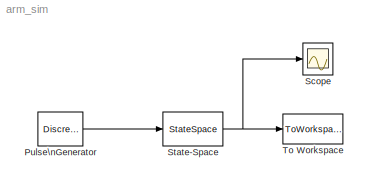
MODEL arm_sim
KIND model
BLOCK [DiscretePulseGenerator] Pulse\nGenerator
  Amplitude = 6.42
  Period = 5
  PhaseDelay = 2
  Ports = [0, 1]
  PulseType = Time based
  PulseWidth = 6
BLOCK [Scope] Scope
  DataFormat = StructureWithTime
  NumInputPorts = 1
  Ports = [1]
BLOCK [StateSpace] State-Space
  A = A
  B = B
  C = C
  D = D
  X0 = IC
BLOCK [ToWorkspace] To Workspace
  MaxDataPoints = inf
  SampleTime = -1
  SaveFormat = Array
  VariableName = simout
LINE Pulse\nGenerator:1 -> State-Space:1
NET State-Space:1 -> Scope:1, To Workspace:1
note: NET lines group one-source signal fan-out (src -> all destinations, sorted); 1:1 wires keep LINE
